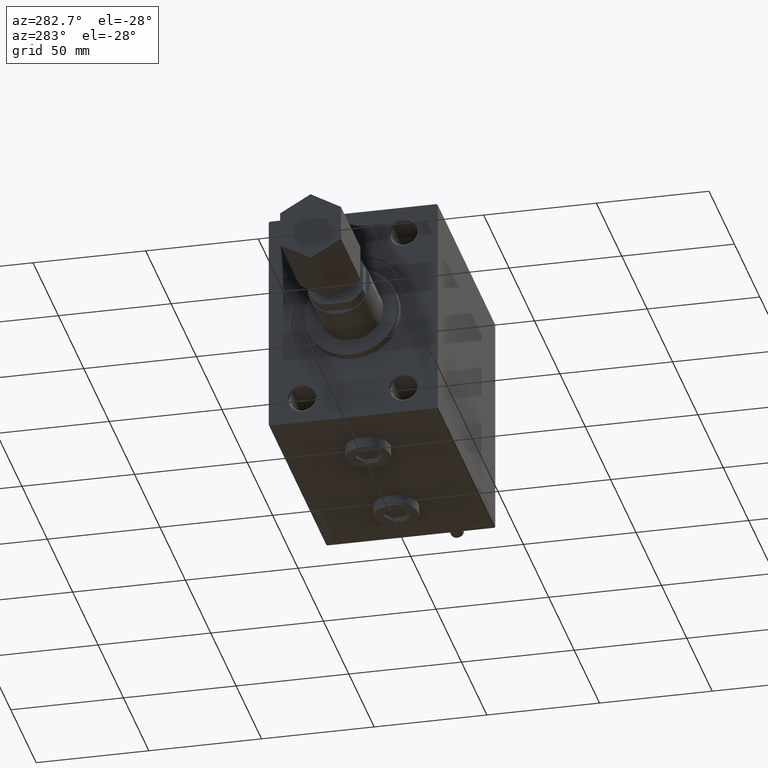
[diagram: clean part render]
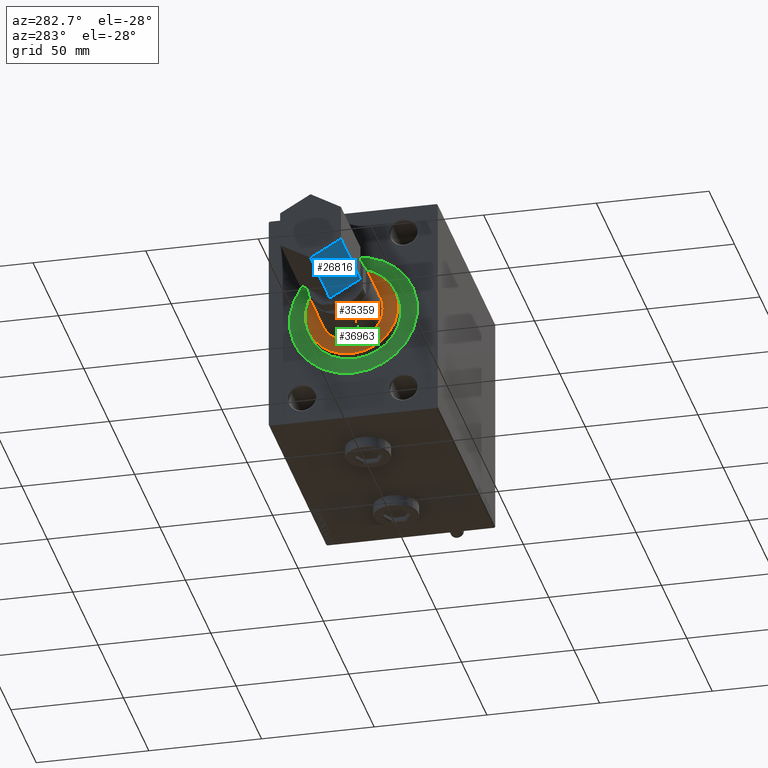
[diagram: same view with three faces highlighted in distinct colors, each labeled with its STEP entity id]
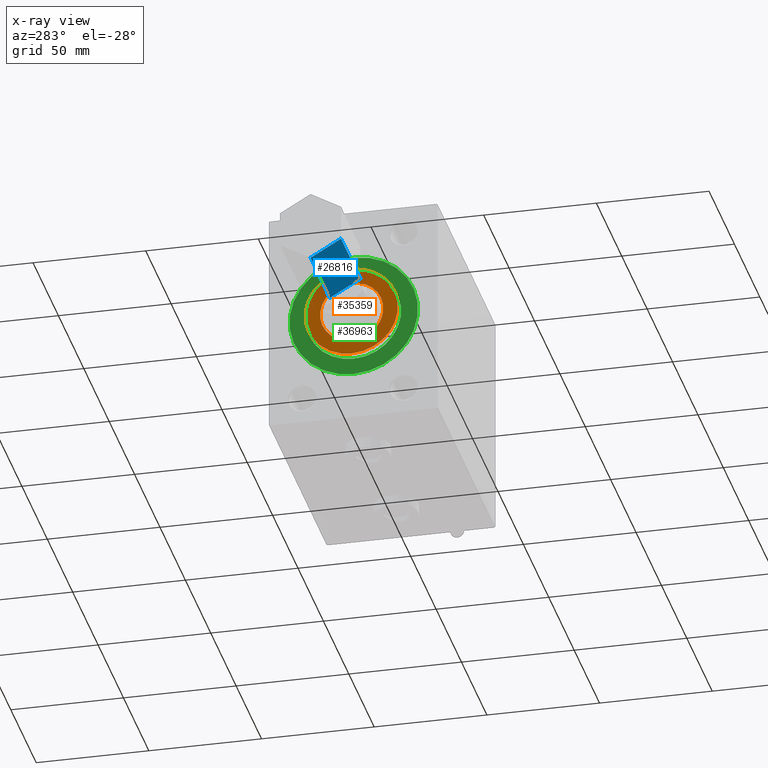
[diagram: x-ray of the same camera — body ghosted, the three highlighted faces saturated]
A machine part, auxiliary view with three faces highlighted in distinct colors.
The next image is the same camera in x-ray (body ghosted, the three faces saturated) — at least one of them is partly hidden behind the body in this view.
Their STEP definitions:

[orange] entity #35359 — the highlighted planar face has unit normal (-1, 0, 0).
#108 = CARTESIAN_POINT ( 'NONE',  ( 116.2000000000000171, 0.000000000000000000, 0.000000000000000000 ) ) ;
#293 = ORIENTED_EDGE ( 'NONE', *, *, #20469, .F. ) ;
#2595 = CARTESIAN_POINT ( 'NONE',  ( 116.2000000000000171, 0.000000000000000000, -20.50000000000000000 ) ) ;
#3203 = CARTESIAN_POINT ( 'NONE',  ( 116.2000000000000171, 0.000000000000000000, 0.000000000000000000 ) ) ;
#3440 = DIRECTION ( 'NONE',  ( 0.000000000000000000, 0.000000000000000000, -1.000000000000000000 ) ) ;
#4134 = DIRECTION ( 'NONE',  ( 0.000000000000000000, 0.000000000000000000, -1.000000000000000000 ) ) ;
#4526 = CIRCLE ( 'NONE', #27304, 20.50000000000000000 ) ;
#7399 = ORIENTED_EDGE ( 'NONE', *, *, #8750, .T. ) ;
#8515 = EDGE_LOOP ( 'NONE', ( #14495, #293 ) ) ;
#8750 = EDGE_CURVE ( 'NONE', #17450, #13001, #4526, .T. ) ;
#10708 = DIRECTION ( 'NONE',  ( 1.000000000000000000, 0.000000000000000000, 0.000000000000000000 ) ) ;
#10750 = CARTESIAN_POINT ( 'NONE',  ( 116.2000000000000171, 1.714505518806294638E-15, 14.00000000000000000 ) ) ;
#11199 = VERTEX_POINT ( 'NONE', #10750 ) ;
#11204 = AXIS2_PLACEMENT_3D ( 'NONE', #22047, #18342, #29711 ) ;
#12011 = VERTEX_POINT ( 'NONE', #45898 ) ;
#13001 = VERTEX_POINT ( 'NONE', #2595 ) ;
#14396 = DIRECTION ( 'NONE',  ( 0.000000000000000000, 0.000000000000000000, -1.000000000000000000 ) ) ;
#14495 = ORIENTED_EDGE ( 'NONE', *, *, #39160, .F. ) ;
#17191 = AXIS2_PLACEMENT_3D ( 'NONE', #25827, #26551, #4134 ) ;
#17450 = VERTEX_POINT ( 'NONE', #39525 ) ;
#18342 = DIRECTION ( 'NONE',  ( 1.000000000000000000, 0.000000000000000000, 0.000000000000000000 ) ) ;
#19158 = FACE_OUTER_BOUND ( 'NONE', #45887, .T. ) ;
#20469 = EDGE_CURVE ( 'NONE', #11199, #12011, #36393, .T. ) ;
#21437 = ORIENTED_EDGE ( 'NONE', *, *, #32867, .T. ) ;
#22047 = CARTESIAN_POINT ( 'NONE',  ( 116.2000000000000171, 0.000000000000000000, 0.000000000000000000 ) ) ;
#22384 = FACE_BOUND ( 'NONE', #8515, .T. ) ;
#25827 = CARTESIAN_POINT ( 'NONE',  ( 116.2000000000000171, 0.000000000000000000, 0.000000000000000000 ) ) ;
#26096 = DIRECTION ( 'NONE',  ( 1.000000000000000000, 0.000000000000000000, 0.000000000000000000 ) ) ;
#26551 = DIRECTION ( 'NONE',  ( 1.000000000000000000, 0.000000000000000000, 0.000000000000000000 ) ) ;
#27304 = AXIS2_PLACEMENT_3D ( 'NONE', #42210, #45422, #41956 ) ;
#29604 = CIRCLE ( 'NONE', #47708, 20.50000000000000000 ) ;
#29711 = DIRECTION ( 'NONE',  ( 0.000000000000000000, 0.000000000000000000, -1.000000000000000000 ) ) ;
#32867 = EDGE_CURVE ( 'NONE', #13001, #17450, #29604, .T. ) ;
#35359 = ADVANCED_FACE ( 'NONE', ( #22384, #19158 ), #37201, .T. ) ;
#36393 = CIRCLE ( 'NONE', #11204, 14.00000000000000000 ) ;
#36783 = CIRCLE ( 'NONE', #17191, 14.00000000000000000 ) ;
#37201 = PLANE ( 'NONE',  #41528 ) ;
#39160 = EDGE_CURVE ( 'NONE', #12011, #11199, #36783, .T. ) ;
#39525 = CARTESIAN_POINT ( 'NONE',  ( 116.2000000000000171, 2.541142108230757874E-15, 20.50000000000000000 ) ) ;
#41528 = AXIS2_PLACEMENT_3D ( 'NONE', #3203, #26096, #3440 ) ;
#41956 = DIRECTION ( 'NONE',  ( 0.000000000000000000, 0.000000000000000000, -1.000000000000000000 ) ) ;
#42210 = CARTESIAN_POINT ( 'NONE',  ( 116.2000000000000171, 0.000000000000000000, 0.000000000000000000 ) ) ;
#45422 = DIRECTION ( 'NONE',  ( 1.000000000000000000, 0.000000000000000000, 0.000000000000000000 ) ) ;
#45887 = EDGE_LOOP ( 'NONE', ( #21437, #7399 ) ) ;
#45898 = CARTESIAN_POINT ( 'NONE',  ( 116.2000000000000171, 0.000000000000000000, -14.00000000000000000 ) ) ;
#47708 = AXIS2_PLACEMENT_3D ( 'NONE', #108, #10708, #14396 ) ;

[blue] entity #26816 — the highlighted planar face has unit normal (-0, 0.5, 0.866).
#1940 = EDGE_CURVE ( 'NONE', #23811, #19317, #8158, .T. ) ;
#2584 = LINE ( 'NONE', #10713, #42033 ) ;
#2674 = ORIENTED_EDGE ( 'NONE', *, *, #23432, .T. ) ;
#7422 = ORIENTED_EDGE ( 'NONE', *, *, #40249, .F. ) ;
#7976 = CARTESIAN_POINT ( 'NONE',  ( 46.00000000000000711, 15.58845726811989252, 0.000000000000000000 ) ) ;
#8158 = LINE ( 'NONE', #42208, #45225 ) ;
#8220 = LINE ( 'NONE', #7976, #40512 ) ;
#9044 = ORIENTED_EDGE ( 'NONE', *, *, #42835, .T. ) ;
#10713 = CARTESIAN_POINT ( 'NONE',  ( 84.00000000000000000, 15.58845726811989252, 0.000000000000000000 ) ) ;
#13867 = DIRECTION ( 'NONE',  ( 0.000000000000000000, 0.4999999999999996669, -0.8660254037844388186 ) ) ;
#14793 = EDGE_LOOP ( 'NONE', ( #9044, #7422, #24355, #2674 ) ) ;
#16319 = CARTESIAN_POINT ( 'NONE',  ( 84.00000000000000000, 7.794228634059951588, 13.50000000000000000 ) ) ;
#19317 = VERTEX_POINT ( 'NONE', #28708 ) ;
#21485 = CARTESIAN_POINT ( 'NONE',  ( 84.00000000000000000, 15.58845726811989252, 0.000000000000000000 ) ) ;
#22968 = VERTEX_POINT ( 'NONE', #32458 ) ;
#23432 = EDGE_CURVE ( 'NONE', #23811, #22968, #2584, .T. ) ;
#23811 = VERTEX_POINT ( 'NONE', #42477 ) ;
#24355 = ORIENTED_EDGE ( 'NONE', *, *, #1940, .F. ) ;
#26816 = ADVANCED_FACE ( 'NONE', ( #37284 ), #44482, .F. ) ;
#28132 = LINE ( 'NONE', #16319, #32876 ) ;
#28708 = CARTESIAN_POINT ( 'NONE',  ( 84.00000000000000000, 7.794228634059951588, 13.50000000000000000 ) ) ;
#30152 = DIRECTION ( 'NONE',  ( 0.000000000000000000, -0.4999999999999996669, 0.8660254037844388186 ) ) ;
#31764 = VERTEX_POINT ( 'NONE', #39181 ) ;
#32319 = DIRECTION ( 'NONE',  ( -1.000000000000000000, -0.000000000000000000, -0.000000000000000000 ) ) ;
#32458 = CARTESIAN_POINT ( 'NONE',  ( 46.00000000000000711, 15.58845726811989252, 0.000000000000000000 ) ) ;
#32876 = VECTOR ( 'NONE', #32319, 1000.000000000000000 ) ;
#35486 = DIRECTION ( 'NONE',  ( 0.000000000000000000, -0.4999999999999996669, 0.8660254037844388186 ) ) ;
#36550 = DIRECTION ( 'NONE',  ( 0.000000000000000000, -0.8660254037844388186, -0.4999999999999996669 ) ) ;
#37284 = FACE_OUTER_BOUND ( 'NONE', #14793, .T. ) ;
#39181 = CARTESIAN_POINT ( 'NONE',  ( 46.00000000000000711, 7.794228634059951588, 13.50000000000000000 ) ) ;
#40249 = EDGE_CURVE ( 'NONE', #19317, #31764, #28132, .T. ) ;
#40512 = VECTOR ( 'NONE', #30152, 1000.000000000000000 ) ;
#42033 = VECTOR ( 'NONE', #47717, 1000.000000000000000 ) ;
#42208 = CARTESIAN_POINT ( 'NONE',  ( 84.00000000000000000, 15.58845726811989252, 0.000000000000000000 ) ) ;
#42477 = CARTESIAN_POINT ( 'NONE',  ( 84.00000000000000000, 15.58845726811989252, 0.000000000000000000 ) ) ;
#42835 = EDGE_CURVE ( 'NONE', #22968, #31764, #8220, .T. ) ;
#44482 = PLANE ( 'NONE',  #48311 ) ;
#45225 = VECTOR ( 'NONE', #35486, 1000.000000000000000 ) ;
#47717 = DIRECTION ( 'NONE',  ( -1.000000000000000000, -0.000000000000000000, -0.000000000000000000 ) ) ;
#48311 = AXIS2_PLACEMENT_3D ( 'NONE', #21485, #36550, #13867 ) ;

[green] entity #36963 — the highlighted planar face has unit normal (-1, 0, 0).
#3180 = DIRECTION ( 'NONE',  ( 0.000000000000000000, 0.000000000000000000, -1.000000000000000000 ) ) ;
#5088 = AXIS2_PLACEMENT_3D ( 'NONE', #27132, #10455, #7929 ) ;
#6107 = CARTESIAN_POINT ( 'NONE',  ( 112.2000000000000028, 3.490243377569956456E-15, 28.50000000000000000 ) ) ;
#7737 = AXIS2_PLACEMENT_3D ( 'NONE', #41916, #22403, #41426 ) ;
#7929 = DIRECTION ( 'NONE',  ( 0.000000000000000000, 0.000000000000000000, -1.000000000000000000 ) ) ;
#10017 = EDGE_CURVE ( 'NONE', #23747, #19460, #48675, .T. ) ;
#10455 = DIRECTION ( 'NONE',  ( 1.000000000000000000, 0.000000000000000000, 0.000000000000000000 ) ) ;
#10605 = CIRCLE ( 'NONE', #5088, 28.50000000000000000 ) ;
#10809 = AXIS2_PLACEMENT_3D ( 'NONE', #17533, #43726, #40017 ) ;
#15589 = AXIS2_PLACEMENT_3D ( 'NONE', #40331, #33655, #22285 ) ;
#17373 = EDGE_LOOP ( 'NONE', ( #40294, #18721 ) ) ;
#17533 = CARTESIAN_POINT ( 'NONE',  ( 112.2000000000000028, 0.000000000000000000, 0.000000000000000000 ) ) ;
#17890 = AXIS2_PLACEMENT_3D ( 'NONE', #18179, #25579, #3180 ) ;
#18179 = CARTESIAN_POINT ( 'NONE',  ( 112.2000000000000028, 0.000000000000000000, 0.000000000000000000 ) ) ;
#18721 = ORIENTED_EDGE ( 'NONE', *, *, #10017, .F. ) ;
#19460 = VERTEX_POINT ( 'NONE', #42953 ) ;
#22285 = DIRECTION ( 'NONE',  ( 0.000000000000000000, 0.000000000000000000, -1.000000000000000000 ) ) ;
#22403 = DIRECTION ( 'NONE',  ( 1.000000000000000000, 0.000000000000000000, 0.000000000000000000 ) ) ;
#23387 = VERTEX_POINT ( 'NONE', #25237 ) ;
#23747 = VERTEX_POINT ( 'NONE', #41240 ) ;
#25237 = CARTESIAN_POINT ( 'NONE',  ( 112.2000000000000028, 0.000000000000000000, -28.50000000000000000 ) ) ;
#25579 = DIRECTION ( 'NONE',  ( 1.000000000000000000, 0.000000000000000000, 0.000000000000000000 ) ) ;
#25756 = CIRCLE ( 'NONE', #10809, 21.00000000000000000 ) ;
#26351 = PLANE ( 'NONE',  #7737 ) ;
#27132 = CARTESIAN_POINT ( 'NONE',  ( 112.2000000000000028, 0.000000000000000000, 0.000000000000000000 ) ) ;
#29551 = EDGE_CURVE ( 'NONE', #29943, #23387, #10605, .T. ) ;
#29943 = VERTEX_POINT ( 'NONE', #6107 ) ;
#33655 = DIRECTION ( 'NONE',  ( 1.000000000000000000, 0.000000000000000000, 0.000000000000000000 ) ) ;
#33998 = FACE_OUTER_BOUND ( 'NONE', #41072, .T. ) ;
#35884 = EDGE_CURVE ( 'NONE', #19460, #23747, #25756, .T. ) ;
#36963 = ADVANCED_FACE ( 'NONE', ( #41184, #33998 ), #26351, .T. ) ;
#38485 = EDGE_CURVE ( 'NONE', #23387, #29943, #39227, .T. ) ;
#39227 = CIRCLE ( 'NONE', #15589, 28.50000000000000000 ) ;
#40017 = DIRECTION ( 'NONE',  ( 0.000000000000000000, 0.000000000000000000, -1.000000000000000000 ) ) ;
#40294 = ORIENTED_EDGE ( 'NONE', *, *, #35884, .F. ) ;
#40331 = CARTESIAN_POINT ( 'NONE',  ( 112.2000000000000028, 0.000000000000000000, 0.000000000000000000 ) ) ;
#41072 = EDGE_LOOP ( 'NONE', ( #45469, #41925 ) ) ;
#41184 = FACE_BOUND ( 'NONE', #17373, .T. ) ;
#41240 = CARTESIAN_POINT ( 'NONE',  ( 112.2000000000000028, 2.571758278209441661E-15, -21.00000000000000000 ) ) ;
#41426 = DIRECTION ( 'NONE',  ( 0.000000000000000000, 0.000000000000000000, -1.000000000000000000 ) ) ;
#41916 = CARTESIAN_POINT ( 'NONE',  ( 112.2000000000000028, 0.000000000000000000, 0.000000000000000000 ) ) ;
#41925 = ORIENTED_EDGE ( 'NONE', *, *, #29551, .T. ) ;
#42953 = CARTESIAN_POINT ( 'NONE',  ( 112.2000000000000028, 0.000000000000000000, 21.00000000000000000 ) ) ;
#43726 = DIRECTION ( 'NONE',  ( 1.000000000000000000, 0.000000000000000000, 0.000000000000000000 ) ) ;
#45469 = ORIENTED_EDGE ( 'NONE', *, *, #38485, .T. ) ;
#48675 = CIRCLE ( 'NONE', #17890, 21.00000000000000000 ) ;